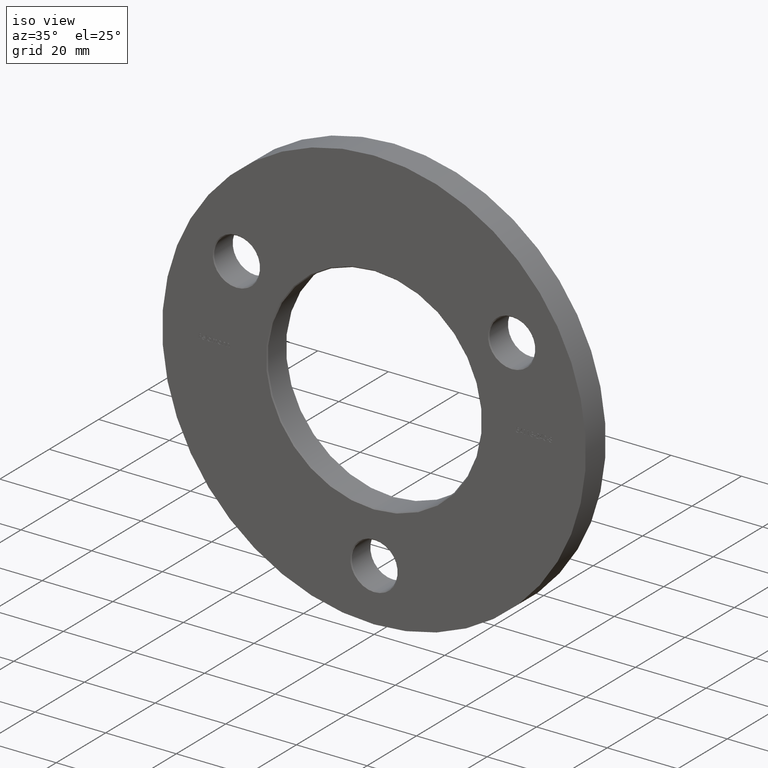
[diagram: clean part render]
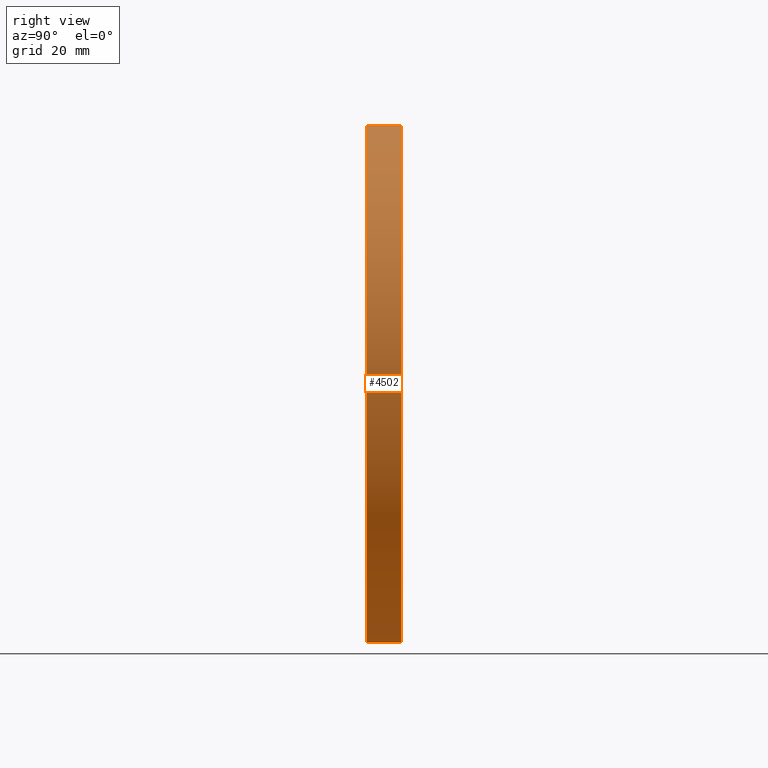
[diagram: tour spotlight — one face highlighted and labeled with its STEP entity id]
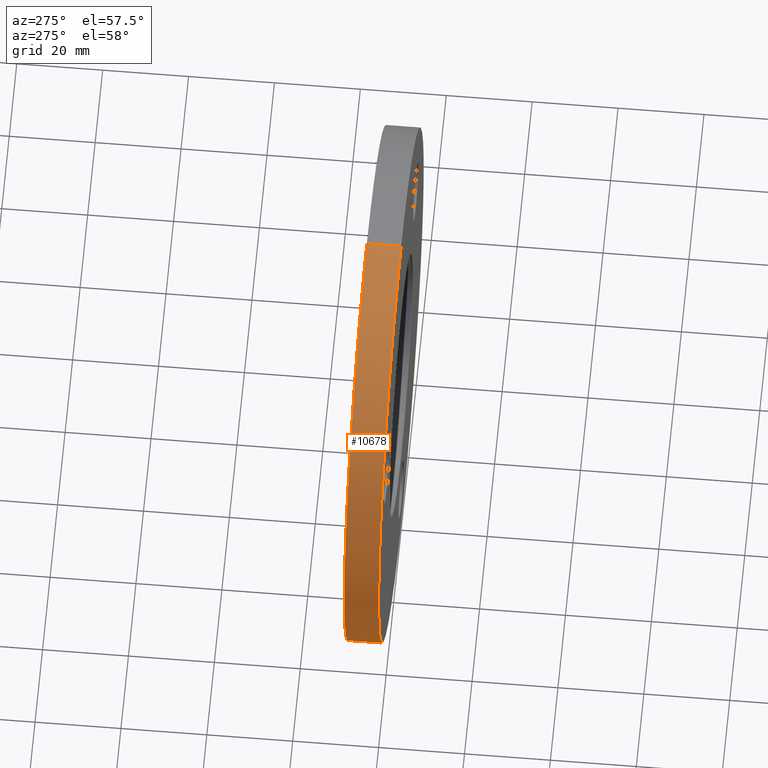
[diagram: tour spotlight — one face highlighted and labeled with its STEP entity id]
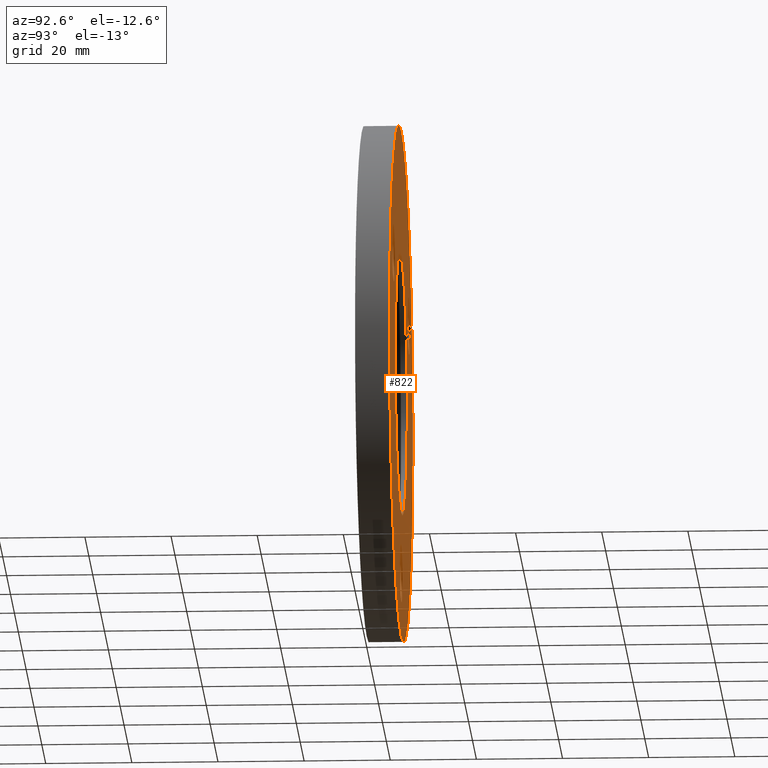
[diagram: tour spotlight — one face highlighted and labeled with its STEP entity id]
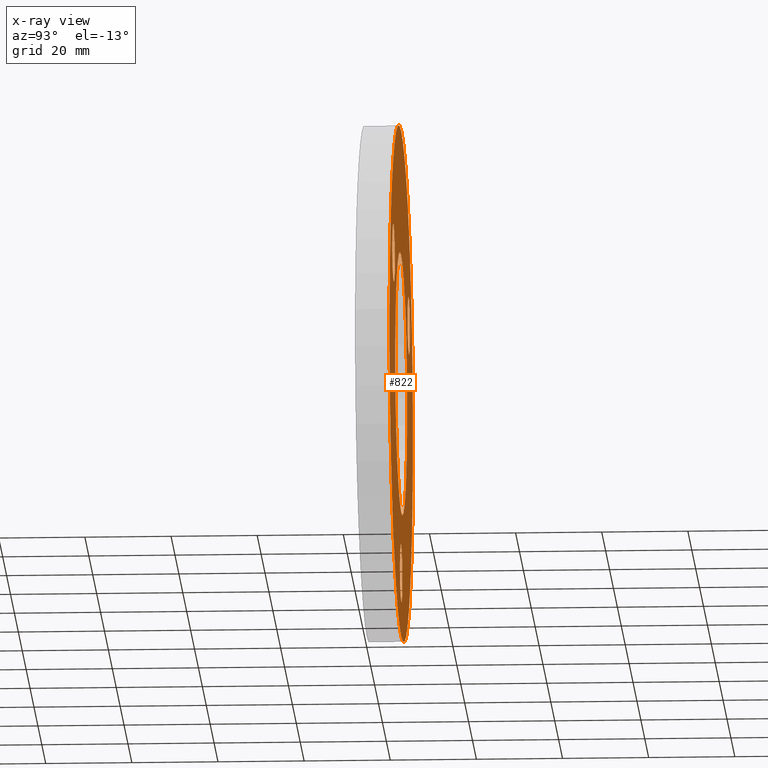
[diagram: x-ray of the same camera — body ghosted, this tour face saturated]
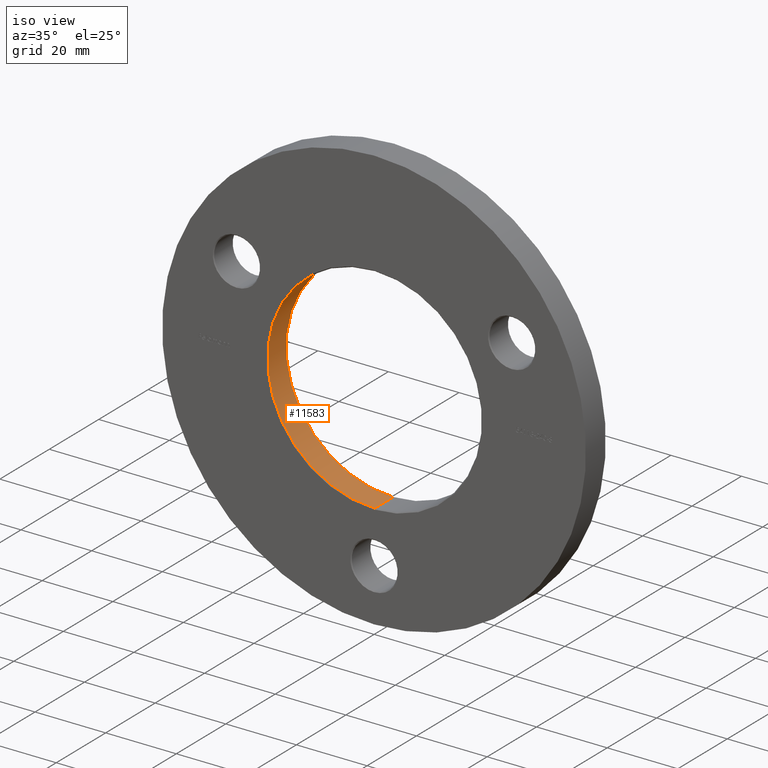
[diagram: tour spotlight — one face highlighted and labeled with its STEP entity id]
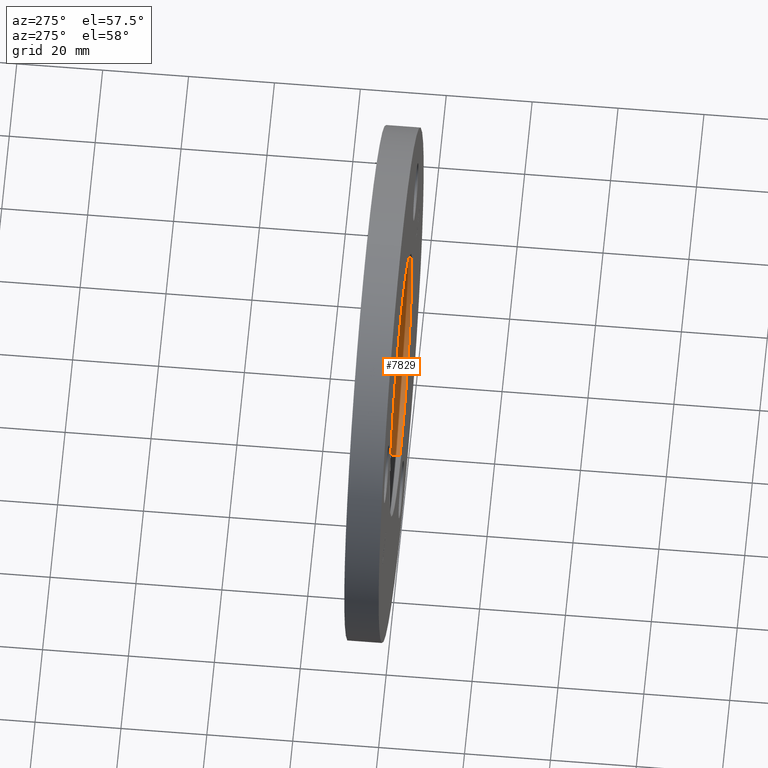
[diagram: tour spotlight — one face highlighted and labeled with its STEP entity id]
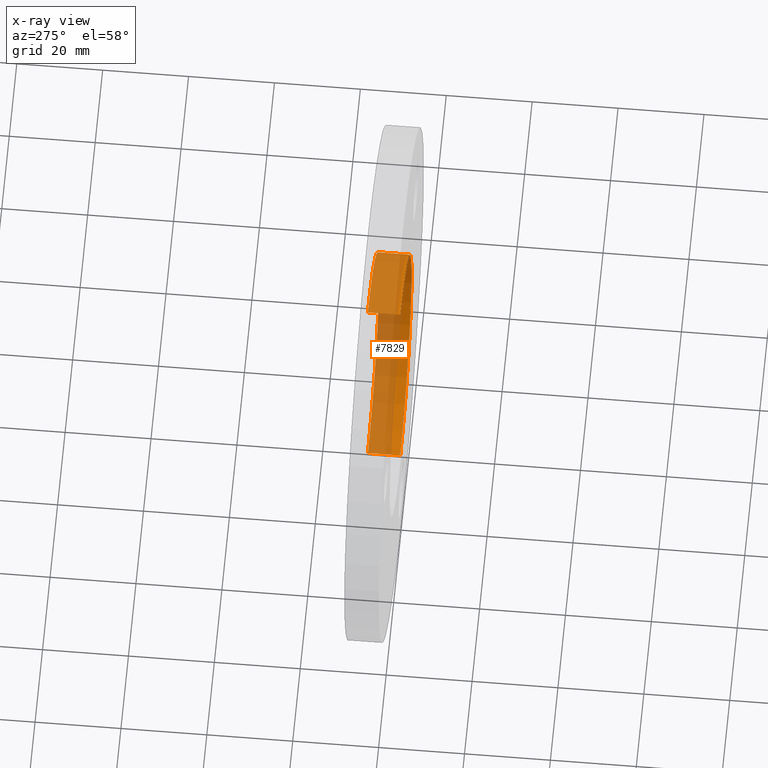
[diagram: x-ray of the same camera — body ghosted, this tour face saturated]
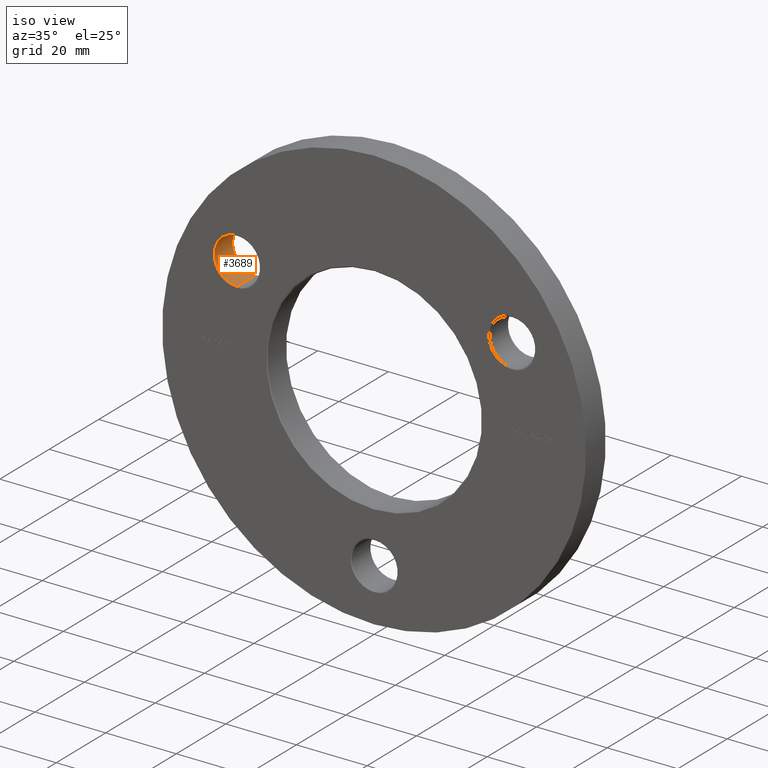
[diagram: tour spotlight — one face highlighted and labeled with its STEP entity id]
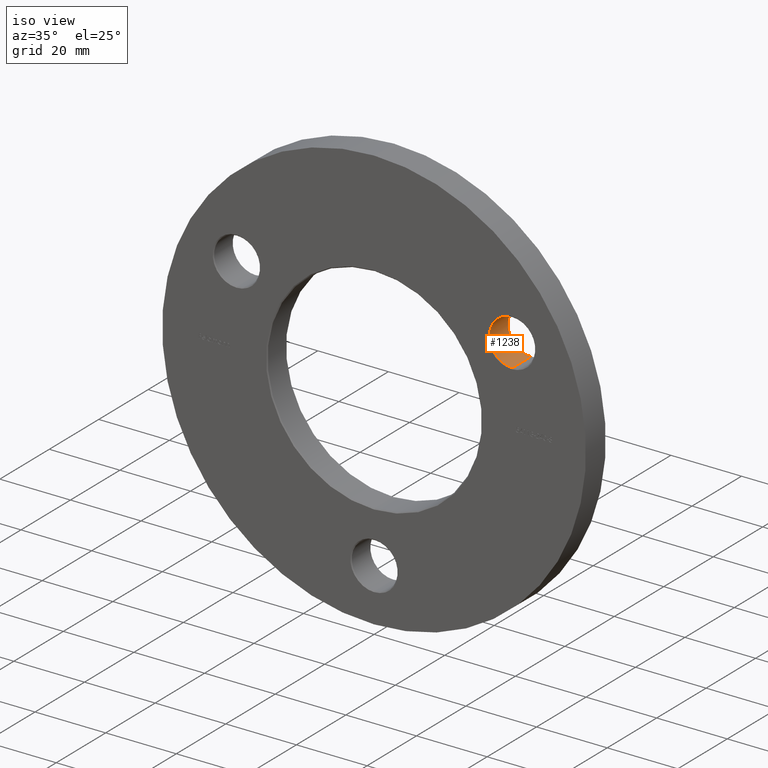
[diagram: tour spotlight — one face highlighted and labeled with its STEP entity id]
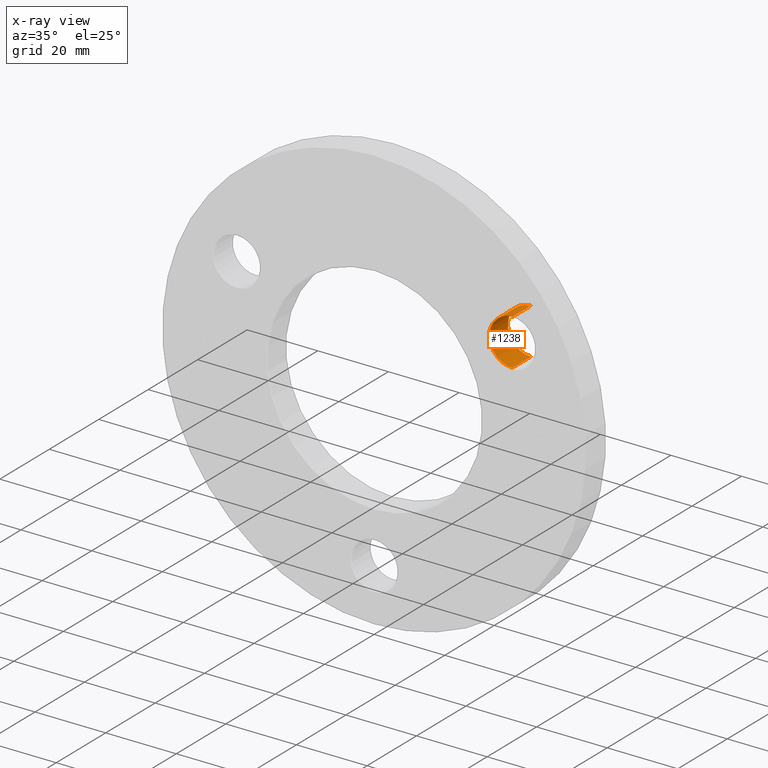
[diagram: x-ray of the same camera — body ghosted, this tour face saturated]
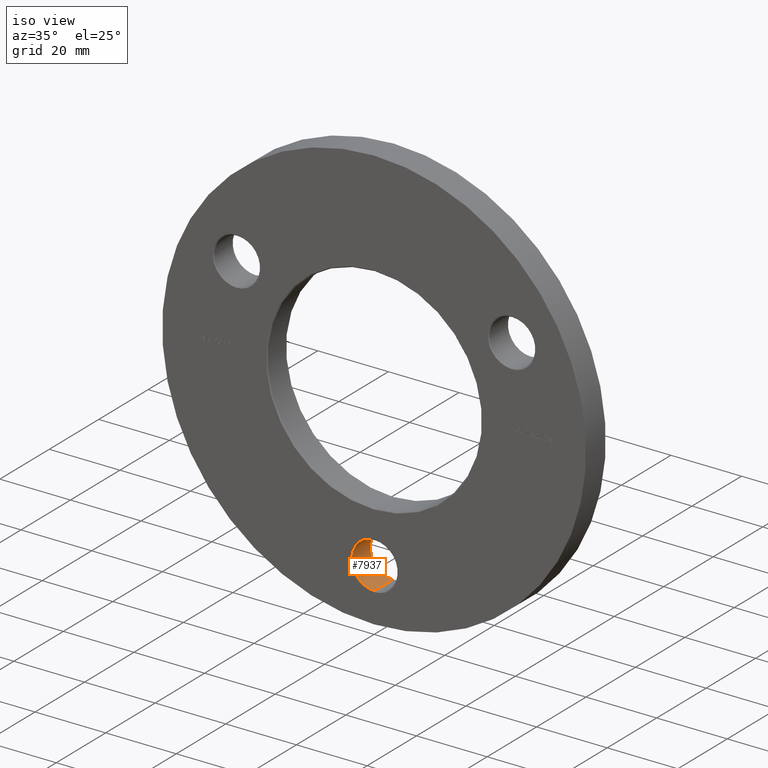
[diagram: tour spotlight — one face highlighted and labeled with its STEP entity id]
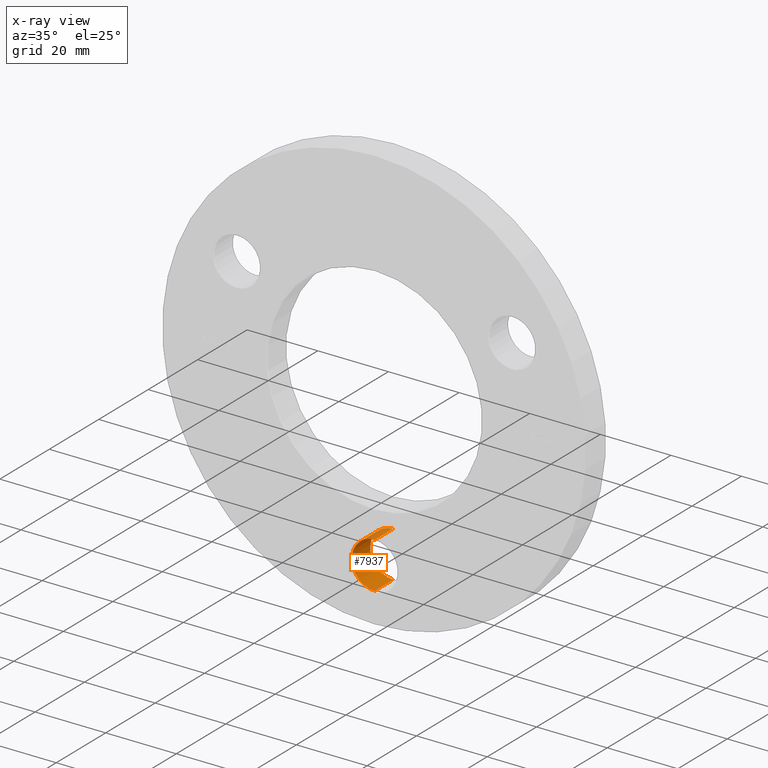
[diagram: x-ray of the same camera — body ghosted, this tour face saturated]
A machine part: a face-by-face anatomy tour. The part has 272 B-rep faces; the first image is the clean iso view, then the 8 largest visible faces are spotlighted one at a time (largest first), each with its STEP entity span.

Face 1 — right view, entity #4502. In plain terms, the highlighted cylindrical surface (partial cylindrical patch) has radius 60 mm, axis along (-0, -1, -0).
Definition (entity closure, byte-faithful):
#568 = DIRECTION ( 'NONE',  ( 0.000000000000000000, 0.000000000000000000, 1.000000000000000000 ) ) ;
#686 = DIRECTION ( 'NONE',  ( 0.000000000000000000, 1.000000000000000000, 0.000000000000000000 ) ) ;
#936 = ORIENTED_EDGE ( 'NONE', *, *, #8297, .T. ) ;
#1449 = CARTESIAN_POINT ( 'NONE',  ( 7.347880794884118356E-15, 8.000000000000000000, 60.00000000000000000 ) ) ;
#2023 = CYLINDRICAL_SURFACE ( 'NONE', #11752, 60.00000000000000000 ) ;
#2128 = CARTESIAN_POINT ( 'NONE',  ( 7.347880794884118356E-15, 8.000000000000000000, 60.00000000000000000 ) ) ;
#2475 = EDGE_LOOP ( 'NONE', ( #13776, #936, #9178, #8138 ) ) ;
#3660 = DIRECTION ( 'NONE',  ( -0.000000000000000000, -1.000000000000000000, -0.000000000000000000 ) ) ;
#4099 = AXIS2_PLACEMENT_3D ( 'NONE', #7072, #686, #8145 ) ;
#4133 = VERTEX_POINT ( 'NONE', #2128 ) ;
#4402 = FACE_OUTER_BOUND ( 'NONE', #2475, .T. ) ;
#4502 = ADVANCED_FACE ( 'NONE', ( #4402 ), #2023, .T. ) ;
#4608 = LINE ( 'NONE', #10141, #10272 ) ;
#4869 = CARTESIAN_POINT ( 'NONE',  ( 0.000000000000000000, 8.000000000000000000, 0.000000000000000000 ) ) ;
#5418 = CARTESIAN_POINT ( 'NONE',  ( 0.000000000000000000, 0.000000000000000000, -60.00000000000000000 ) ) ;
#5657 = EDGE_CURVE ( 'NONE', #9015, #6460, #11389, .T. ) ;
#5826 = DIRECTION ( 'NONE',  ( -0.000000000000000000, -1.000000000000000000, -0.000000000000000000 ) ) ;
#6142 = VECTOR ( 'NONE', #3660, 1000.000000000000000 ) ;
#6460 = VERTEX_POINT ( 'NONE', #5418 ) ;
#7072 = CARTESIAN_POINT ( 'NONE',  ( 0.000000000000000000, 0.000000000000000000, 0.000000000000000000 ) ) ;
#7487 = EDGE_CURVE ( 'NONE', #4133, #8679, #12534, .T. ) ;
#8138 = ORIENTED_EDGE ( 'NONE', *, *, #10668, .F. ) ;
#8145 = DIRECTION ( 'NONE',  ( 0.000000000000000000, 0.000000000000000000, 1.000000000000000000 ) ) ;
#8297 = EDGE_CURVE ( 'NONE', #4133, #9015, #11796, .T. ) ;
#8679 = VERTEX_POINT ( 'NONE', #9862 ) ;
#9015 = VERTEX_POINT ( 'NONE', #10212 ) ;
#9178 = ORIENTED_EDGE ( 'NONE', *, *, #5657, .T. ) ;
#9797 = DIRECTION ( 'NONE',  ( 0.000000000000000000, 0.000000000000000000, -1.000000000000000000 ) ) ;
#9862 = CARTESIAN_POINT ( 'NONE',  ( 0.000000000000000000, 8.000000000000000000, -60.00000000000000000 ) ) ;
#10141 = CARTESIAN_POINT ( 'NONE',  ( 0.000000000000000000, 8.000000000000000000, -60.00000000000000000 ) ) ;
#10212 = CARTESIAN_POINT ( 'NONE',  ( 7.347880794884118356E-15, 0.000000000000000000, 60.00000000000000000 ) ) ;
#10272 = VECTOR ( 'NONE', #5826, 1000.000000000000000 ) ;
#10668 = EDGE_CURVE ( 'NONE', #8679, #6460, #4608, .T. ) ;
#11094 = CARTESIAN_POINT ( 'NONE',  ( 0.000000000000000000, 8.000000000000000000, 0.000000000000000000 ) ) ;
#11389 = CIRCLE ( 'NONE', #4099, 60.00000000000000000 ) ;
#11752 = AXIS2_PLACEMENT_3D ( 'NONE', #11094, #12212, #9797 ) ;
#11796 = LINE ( 'NONE', #1449, #6142 ) ;
#12212 = DIRECTION ( 'NONE',  ( -0.000000000000000000, -1.000000000000000000, -0.000000000000000000 ) ) ;
#12534 = CIRCLE ( 'NONE', #13048, 60.00000000000000000 ) ;
#13048 = AXIS2_PLACEMENT_3D ( 'NONE', #4869, #13509, #568 ) ;
#13509 = DIRECTION ( 'NONE',  ( 0.000000000000000000, 1.000000000000000000, 0.000000000000000000 ) ) ;
#13776 = ORIENTED_EDGE ( 'NONE', *, *, #7487, .F. ) ;

Face 2 — auxiliary view, entity #10678. In plain terms, the highlighted cylindrical surface (partial cylindrical patch) has radius 60 mm, axis along (-0, -1, -0).
Definition (entity closure, byte-faithful):
#1449 = CARTESIAN_POINT ( 'NONE',  ( 7.347880794884118356E-15, 8.000000000000000000, 60.00000000000000000 ) ) ;
#1740 = ORIENTED_EDGE ( 'NONE', *, *, #11382, .F. ) ;
#1756 = CYLINDRICAL_SURFACE ( 'NONE', #4498, 60.00000000000000000 ) ;
#2128 = CARTESIAN_POINT ( 'NONE',  ( 7.347880794884118356E-15, 8.000000000000000000, 60.00000000000000000 ) ) ;
#3660 = DIRECTION ( 'NONE',  ( -0.000000000000000000, -1.000000000000000000, -0.000000000000000000 ) ) ;
#4133 = VERTEX_POINT ( 'NONE', #2128 ) ;
#4498 = AXIS2_PLACEMENT_3D ( 'NONE', #13471, #11121, #5961 ) ;
#4608 = LINE ( 'NONE', #10141, #10272 ) ;
#5344 = EDGE_CURVE ( 'NONE', #6460, #9015, #7194, .T. ) ;
#5418 = CARTESIAN_POINT ( 'NONE',  ( 0.000000000000000000, 0.000000000000000000, -60.00000000000000000 ) ) ;
#5826 = DIRECTION ( 'NONE',  ( -0.000000000000000000, -1.000000000000000000, -0.000000000000000000 ) ) ;
#5961 = DIRECTION ( 'NONE',  ( 0.000000000000000000, 0.000000000000000000, -1.000000000000000000 ) ) ;
#6060 = AXIS2_PLACEMENT_3D ( 'NONE', #11240, #6911, #9043 ) ;
#6142 = VECTOR ( 'NONE', #3660, 1000.000000000000000 ) ;
#6460 = VERTEX_POINT ( 'NONE', #5418 ) ;
#6911 = DIRECTION ( 'NONE',  ( 0.000000000000000000, 1.000000000000000000, 0.000000000000000000 ) ) ;
#7194 = CIRCLE ( 'NONE', #6060, 60.00000000000000000 ) ;
#8076 = ORIENTED_EDGE ( 'NONE', *, *, #10668, .T. ) ;
#8122 = EDGE_LOOP ( 'NONE', ( #9790, #1740, #8076, #8867 ) ) ;
#8297 = EDGE_CURVE ( 'NONE', #4133, #9015, #11796, .T. ) ;
#8679 = VERTEX_POINT ( 'NONE', #9862 ) ;
#8867 = ORIENTED_EDGE ( 'NONE', *, *, #5344, .T. ) ;
#9015 = VERTEX_POINT ( 'NONE', #10212 ) ;
#9043 = DIRECTION ( 'NONE',  ( 0.000000000000000000, 0.000000000000000000, 1.000000000000000000 ) ) ;
#9257 = CARTESIAN_POINT ( 'NONE',  ( 0.000000000000000000, 8.000000000000000000, 0.000000000000000000 ) ) ;
#9517 = CIRCLE ( 'NONE', #13605, 60.00000000000000000 ) ;
#9790 = ORIENTED_EDGE ( 'NONE', *, *, #8297, .F. ) ;
#9862 = CARTESIAN_POINT ( 'NONE',  ( 0.000000000000000000, 8.000000000000000000, -60.00000000000000000 ) ) ;
#10141 = CARTESIAN_POINT ( 'NONE',  ( 0.000000000000000000, 8.000000000000000000, -60.00000000000000000 ) ) ;
#10212 = CARTESIAN_POINT ( 'NONE',  ( 7.347880794884118356E-15, 0.000000000000000000, 60.00000000000000000 ) ) ;
#10272 = VECTOR ( 'NONE', #5826, 1000.000000000000000 ) ;
#10522 = DIRECTION ( 'NONE',  ( 0.000000000000000000, 0.000000000000000000, 1.000000000000000000 ) ) ;
#10668 = EDGE_CURVE ( 'NONE', #8679, #6460, #4608, .T. ) ;
#10678 = ADVANCED_FACE ( 'NONE', ( #13456 ), #1756, .T. ) ;
#11121 = DIRECTION ( 'NONE',  ( -0.000000000000000000, -1.000000000000000000, -0.000000000000000000 ) ) ;
#11240 = CARTESIAN_POINT ( 'NONE',  ( 0.000000000000000000, 0.000000000000000000, 0.000000000000000000 ) ) ;
#11382 = EDGE_CURVE ( 'NONE', #8679, #4133, #9517, .T. ) ;
#11796 = LINE ( 'NONE', #1449, #6142 ) ;
#12532 = DIRECTION ( 'NONE',  ( 0.000000000000000000, 1.000000000000000000, 0.000000000000000000 ) ) ;
#13456 = FACE_OUTER_BOUND ( 'NONE', #8122, .T. ) ;
#13471 = CARTESIAN_POINT ( 'NONE',  ( 0.000000000000000000, 8.000000000000000000, 0.000000000000000000 ) ) ;
#13605 = AXIS2_PLACEMENT_3D ( 'NONE', #9257, #12532, #10522 ) ;

Face 3 — auxiliary view, entity #822. An x-ray twin of the same camera follows (body ghosted, this face saturated) — the face is partly hidden behind the body. In plain terms, the highlighted planar face has unit normal (0, 1, 0).
Definition (entity closure, byte-faithful):
#189 = AXIS2_PLACEMENT_3D ( 'NONE', #6184, #11402, #10427 ) ;
#366 = EDGE_CURVE ( 'NONE', #11688, #7033, #4965, .T. ) ;
#436 = VERTEX_POINT ( 'NONE', #10826 ) ;
#568 = DIRECTION ( 'NONE',  ( 0.000000000000000000, 0.000000000000000000, 1.000000000000000000 ) ) ;
#705 = CARTESIAN_POINT ( 'NONE',  ( -38.97114317029972597, 8.000000000000000000, 29.25000000000005329 ) ) ;
#822 = ADVANCED_FACE ( 'NONE', ( #9260, #9597, #6421, #3603, #7250 ), #12729, .T. ) ;
#1030 = DIRECTION ( 'NONE',  ( -0.000000000000000000, -1.000000000000000000, -0.000000000000000000 ) ) ;
#1104 = DIRECTION ( 'NONE',  ( 0.000000000000000000, -0.000000000000000000, 1.000000000000000000 ) ) ;
#1486 = AXIS2_PLACEMENT_3D ( 'NONE', #5090, #7074, #4013 ) ;
#1508 = VERTEX_POINT ( 'NONE', #2537 ) ;
#1797 = CARTESIAN_POINT ( 'NONE',  ( 0.000000000000000000, 8.000000000000000000, 0.000000000000000000 ) ) ;
#1843 = DIRECTION ( 'NONE',  ( -0.000000000000000000, -1.000000000000000000, -0.000000000000000000 ) ) ;
#2000 = DIRECTION ( 'NONE',  ( 0.000000000000000000, 0.000000000000000000, 1.000000000000000000 ) ) ;
#2128 = CARTESIAN_POINT ( 'NONE',  ( 7.347880794884118356E-15, 8.000000000000000000, 60.00000000000000000 ) ) ;
#2537 = CARTESIAN_POINT ( 'NONE',  ( 0.000000000000000000, 8.000000000000000000, -38.24999999999996447 ) ) ;
#2740 = EDGE_LOOP ( 'NONE', ( #10218, #13555 ) ) ;
#2808 = EDGE_CURVE ( 'NONE', #7896, #1508, #6083, .T. ) ;
#2988 = ORIENTED_EDGE ( 'NONE', *, *, #10772, .T. ) ;
#2992 = ORIENTED_EDGE ( 'NONE', *, *, #366, .T. ) ;
#3137 = CARTESIAN_POINT ( 'NONE',  ( 38.97114317029974728, 8.000000000000000000, 22.49999999999999289 ) ) ;
#3267 = CIRCLE ( 'NONE', #189, 6.750000000000033751 ) ;
#3412 = DIRECTION ( 'NONE',  ( -0.000000000000000000, -1.000000000000000000, -0.000000000000000000 ) ) ;
#3603 = FACE_BOUND ( 'NONE', #7544, .T. ) ;
#3899 = AXIS2_PLACEMENT_3D ( 'NONE', #8605, #10762, #1104 ) ;
#4013 = DIRECTION ( 'NONE',  ( 0.000000000000000000, 0.000000000000000000, 1.000000000000000000 ) ) ;
#4125 = EDGE_CURVE ( 'NONE', #6318, #436, #11388, .T. ) ;
#4133 = VERTEX_POINT ( 'NONE', #2128 ) ;
#4138 = CARTESIAN_POINT ( 'NONE',  ( 8.266365894244675749E-16, 8.000000000000000000, -51.75000000000003553 ) ) ;
#4392 = CARTESIAN_POINT ( 'NONE',  ( 0.000000000000000000, 8.000000000000000000, -45.00000000000000000 ) ) ;
#4426 = DIRECTION ( 'NONE',  ( -0.000000000000000000, -1.000000000000000000, -0.000000000000000000 ) ) ;
#4714 = ORIENTED_EDGE ( 'NONE', *, *, #2808, .T. ) ;
#4869 = CARTESIAN_POINT ( 'NONE',  ( 0.000000000000000000, 8.000000000000000000, 0.000000000000000000 ) ) ;
#4965 = CIRCLE ( 'NONE', #13646, 6.750000000000033751 ) ;
#5090 = CARTESIAN_POINT ( 'NONE',  ( -38.97114317029972597, 8.000000000000000000, 22.50000000000002132 ) ) ;
#5101 = EDGE_LOOP ( 'NONE', ( #11729, #11075 ) ) ;
#5244 = DIRECTION ( 'NONE',  ( 0.000000000000000000, 0.000000000000000000, 1.000000000000000000 ) ) ;
#5403 = CARTESIAN_POINT ( 'NONE',  ( 0.000000000000000000, 8.000000000000000000, 0.000000000000000000 ) ) ;
#6083 = CIRCLE ( 'NONE', #8535, 6.750000000000033751 ) ;
#6105 = AXIS2_PLACEMENT_3D ( 'NONE', #5403, #4426, #11865 ) ;
#6184 = CARTESIAN_POINT ( 'NONE',  ( 0.000000000000000000, 8.000000000000000000, -45.00000000000000000 ) ) ;
#6259 = CARTESIAN_POINT ( 'NONE',  ( 38.97114317029974728, 8.000000000000000000, 22.49999999999999289 ) ) ;
#6318 = VERTEX_POINT ( 'NONE', #705 ) ;
#6421 = FACE_BOUND ( 'NONE', #2740, .T. ) ;
#6483 = ORIENTED_EDGE ( 'NONE', *, *, #7615, .T. ) ;
#6729 = EDGE_CURVE ( 'NONE', #436, #6318, #8360, .T. ) ;
#6888 = CARTESIAN_POINT ( 'NONE',  ( 0.000000000000000000, 8.000000000000000000, 30.59999999999998721 ) ) ;
#7033 = VERTEX_POINT ( 'NONE', #13430 ) ;
#7074 = DIRECTION ( 'NONE',  ( -0.000000000000000000, -1.000000000000000000, -0.000000000000000000 ) ) ;
#7147 = CIRCLE ( 'NONE', #6105, 30.59999999999998721 ) ;
#7250 = FACE_OUTER_BOUND ( 'NONE', #13592, .T. ) ;
#7284 = AXIS2_PLACEMENT_3D ( 'NONE', #9468, #11778, #9697 ) ;
#7378 = CARTESIAN_POINT ( 'NONE',  ( 38.97114317029974728, 8.000000000000000000, 29.25000000000002487 ) ) ;
#7487 = EDGE_CURVE ( 'NONE', #4133, #8679, #12534, .T. ) ;
#7544 = EDGE_LOOP ( 'NONE', ( #2988, #4714 ) ) ;
#7615 = EDGE_CURVE ( 'NONE', #7033, #11688, #8518, .T. ) ;
#7896 = VERTEX_POINT ( 'NONE', #4138 ) ;
#8324 = DIRECTION ( 'NONE',  ( 0.000000000000000000, 0.000000000000000000, 1.000000000000000000 ) ) ;
#8360 = CIRCLE ( 'NONE', #1486, 6.750000000000033751 ) ;
#8518 = CIRCLE ( 'NONE', #9651, 6.750000000000033751 ) ;
#8535 = AXIS2_PLACEMENT_3D ( 'NONE', #4392, #3412, #10858 ) ;
#8605 = CARTESIAN_POINT ( 'NONE',  ( 0.000000000000000000, 8.000000000000000000, 0.000000000000000000 ) ) ;
#8679 = VERTEX_POINT ( 'NONE', #9862 ) ;
#8813 = VERTEX_POINT ( 'NONE', #8907 ) ;
#8907 = CARTESIAN_POINT ( 'NONE',  ( 3.747419205390899320E-15, 8.000000000000000000, -30.59999999999998721 ) ) ;
#9051 = ORIENTED_EDGE ( 'NONE', *, *, #11382, .T. ) ;
#9257 = CARTESIAN_POINT ( 'NONE',  ( 0.000000000000000000, 8.000000000000000000, 0.000000000000000000 ) ) ;
#9260 = FACE_BOUND ( 'NONE', #5101, .T. ) ;
#9468 = CARTESIAN_POINT ( 'NONE',  ( -38.97114317029972597, 8.000000000000000000, 22.50000000000002132 ) ) ;
#9517 = CIRCLE ( 'NONE', #13605, 60.00000000000000000 ) ;
#9597 = FACE_BOUND ( 'NONE', #9896, .T. ) ;
#9651 = AXIS2_PLACEMENT_3D ( 'NONE', #6259, #13738, #2000 ) ;
#9697 = DIRECTION ( 'NONE',  ( 0.000000000000000000, 0.000000000000000000, 1.000000000000000000 ) ) ;
#9862 = CARTESIAN_POINT ( 'NONE',  ( 0.000000000000000000, 8.000000000000000000, -60.00000000000000000 ) ) ;
#9896 = EDGE_LOOP ( 'NONE', ( #2992, #6483 ) ) ;
#10218 = ORIENTED_EDGE ( 'NONE', *, *, #4125, .T. ) ;
#10427 = DIRECTION ( 'NONE',  ( 0.000000000000000000, 0.000000000000000000, 1.000000000000000000 ) ) ;
#10522 = DIRECTION ( 'NONE',  ( 0.000000000000000000, 0.000000000000000000, 1.000000000000000000 ) ) ;
#10762 = DIRECTION ( 'NONE',  ( 0.000000000000000000, 1.000000000000000000, 0.000000000000000000 ) ) ;
#10772 = EDGE_CURVE ( 'NONE', #1508, #7896, #3267, .T. ) ;
#10826 = CARTESIAN_POINT ( 'NONE',  ( -38.97114317029972597, 8.000000000000000000, 15.74999999999998579 ) ) ;
#10858 = DIRECTION ( 'NONE',  ( 0.000000000000000000, 0.000000000000000000, 1.000000000000000000 ) ) ;
#11075 = ORIENTED_EDGE ( 'NONE', *, *, #11386, .T. ) ;
#11308 = VERTEX_POINT ( 'NONE', #6888 ) ;
#11382 = EDGE_CURVE ( 'NONE', #8679, #4133, #9517, .T. ) ;
#11386 = EDGE_CURVE ( 'NONE', #8813, #11308, #13033, .T. ) ;
#11388 = CIRCLE ( 'NONE', #7284, 6.750000000000033751 ) ;
#11402 = DIRECTION ( 'NONE',  ( -0.000000000000000000, -1.000000000000000000, -0.000000000000000000 ) ) ;
#11688 = VERTEX_POINT ( 'NONE', #7378 ) ;
#11729 = ORIENTED_EDGE ( 'NONE', *, *, #13279, .T. ) ;
#11778 = DIRECTION ( 'NONE',  ( -0.000000000000000000, -1.000000000000000000, -0.000000000000000000 ) ) ;
#11865 = DIRECTION ( 'NONE',  ( 0.000000000000000000, 0.000000000000000000, 1.000000000000000000 ) ) ;
#11891 = AXIS2_PLACEMENT_3D ( 'NONE', #1797, #1843, #8324 ) ;
#12388 = ORIENTED_EDGE ( 'NONE', *, *, #7487, .T. ) ;
#12532 = DIRECTION ( 'NONE',  ( 0.000000000000000000, 1.000000000000000000, 0.000000000000000000 ) ) ;
#12534 = CIRCLE ( 'NONE', #13048, 60.00000000000000000 ) ;
#12729 = PLANE ( 'NONE',  #3899 ) ;
#13033 = CIRCLE ( 'NONE', #11891, 30.59999999999998721 ) ;
#13048 = AXIS2_PLACEMENT_3D ( 'NONE', #4869, #13509, #568 ) ;
#13279 = EDGE_CURVE ( 'NONE', #11308, #8813, #7147, .T. ) ;
#13430 = CARTESIAN_POINT ( 'NONE',  ( 38.97114317029974728, 8.000000000000000000, 15.74999999999995914 ) ) ;
#13509 = DIRECTION ( 'NONE',  ( 0.000000000000000000, 1.000000000000000000, 0.000000000000000000 ) ) ;
#13555 = ORIENTED_EDGE ( 'NONE', *, *, #6729, .T. ) ;
#13592 = EDGE_LOOP ( 'NONE', ( #9051, #12388 ) ) ;
#13605 = AXIS2_PLACEMENT_3D ( 'NONE', #9257, #12532, #10522 ) ;
#13646 = AXIS2_PLACEMENT_3D ( 'NONE', #3137, #1030, #5244 ) ;
#13738 = DIRECTION ( 'NONE',  ( -0.000000000000000000, -1.000000000000000000, -0.000000000000000000 ) ) ;

Face 4 — iso view, entity #11583. In plain terms, the highlighted cylindrical surface (partial cylindrical patch) has radius 30.35 mm, axis along (-0, 1, -0).
Definition (entity closure, byte-faithful):
#23 = ORIENTED_EDGE ( 'NONE', *, *, #10952, .T. ) ;
#911 = DIRECTION ( 'NONE',  ( 0.000000000000000000, 0.000000000000000000, 1.000000000000000000 ) ) ;
#1438 = CARTESIAN_POINT ( 'NONE',  ( 0.000000000000000000, 0.2500000000000210387, 0.000000000000000000 ) ) ;
#1586 = EDGE_LOOP ( 'NONE', ( #23, #13479, #6713, #13041 ) ) ;
#2006 = CARTESIAN_POINT ( 'NONE',  ( 0.000000000000000000, 0.2500000000000210387, 30.35000000000000142 ) ) ;
#2356 = DIRECTION ( 'NONE',  ( 0.000000000000000000, 1.000000000000000000, 0.000000000000000000 ) ) ;
#2970 = EDGE_CURVE ( 'NONE', #3597, #7656, #8898, .T. ) ;
#3020 = FACE_OUTER_BOUND ( 'NONE', #1586, .T. ) ;
#3041 = CARTESIAN_POINT ( 'NONE',  ( 3.716803035412217111E-15, 0.000000000000000000, -30.35000000000000142 ) ) ;
#3172 = CIRCLE ( 'NONE', #6814, 30.35000000000000142 ) ;
#3205 = LINE ( 'NONE', #3041, #6381 ) ;
#3597 = VERTEX_POINT ( 'NONE', #2006 ) ;
#3918 = VECTOR ( 'NONE', #6800, 1000.000000000000000 ) ;
#4331 = CARTESIAN_POINT ( 'NONE',  ( 0.000000000000000000, 7.750000000000003553, 0.000000000000000000 ) ) ;
#4403 = CARTESIAN_POINT ( 'NONE',  ( 0.000000000000000000, 7.750000000000003553, 30.35000000000000142 ) ) ;
#4628 = VERTEX_POINT ( 'NONE', #9545 ) ;
#5450 = EDGE_CURVE ( 'NONE', #7665, #4628, #3205, .T. ) ;
#6381 = VECTOR ( 'NONE', #10501, 1000.000000000000000 ) ;
#6599 = DIRECTION ( 'NONE',  ( 0.000000000000000000, 0.000000000000000000, 1.000000000000000000 ) ) ;
#6630 = AXIS2_PLACEMENT_3D ( 'NONE', #13664, #7294, #911 ) ;
#6713 = ORIENTED_EDGE ( 'NONE', *, *, #12259, .T. ) ;
#6800 = DIRECTION ( 'NONE',  ( -0.000000000000000000, 1.000000000000000000, -0.000000000000000000 ) ) ;
#6814 = AXIS2_PLACEMENT_3D ( 'NONE', #4331, #2356, #6599 ) ;
#7294 = DIRECTION ( 'NONE',  ( -0.000000000000000000, 1.000000000000000000, -0.000000000000000000 ) ) ;
#7656 = VERTEX_POINT ( 'NONE', #4403 ) ;
#7665 = VERTEX_POINT ( 'NONE', #11836 ) ;
#8898 = LINE ( 'NONE', #12248, #3918 ) ;
#9427 = CIRCLE ( 'NONE', #13346, 30.35000000000000142 ) ;
#9545 = CARTESIAN_POINT ( 'NONE',  ( 3.716803035412217111E-15, 7.750000000000003553, -30.35000000000000142 ) ) ;
#10355 = CYLINDRICAL_SURFACE ( 'NONE', #6630, 30.35000000000000142 ) ;
#10501 = DIRECTION ( 'NONE',  ( -0.000000000000000000, 1.000000000000000000, -0.000000000000000000 ) ) ;
#10952 = EDGE_CURVE ( 'NONE', #3597, #7665, #9427, .T. ) ;
#11001 = DIRECTION ( 'NONE',  ( 0.000000000000000000, 0.000000000000000000, 1.000000000000000000 ) ) ;
#11583 = ADVANCED_FACE ( 'NONE', ( #3020 ), #10355, .F. ) ;
#11836 = CARTESIAN_POINT ( 'NONE',  ( 3.716803035412217111E-15, 0.2500000000000210387, -30.35000000000000142 ) ) ;
#12248 = CARTESIAN_POINT ( 'NONE',  ( 0.000000000000000000, 0.000000000000000000, 30.35000000000000142 ) ) ;
#12259 = EDGE_CURVE ( 'NONE', #4628, #7656, #3172, .T. ) ;
#13041 = ORIENTED_EDGE ( 'NONE', *, *, #2970, .F. ) ;
#13067 = DIRECTION ( 'NONE',  ( -0.000000000000000000, -1.000000000000000000, -0.000000000000000000 ) ) ;
#13346 = AXIS2_PLACEMENT_3D ( 'NONE', #1438, #13067, #11001 ) ;
#13479 = ORIENTED_EDGE ( 'NONE', *, *, #5450, .T. ) ;
#13664 = CARTESIAN_POINT ( 'NONE',  ( 0.000000000000000000, 0.000000000000000000, 0.000000000000000000 ) ) ;

Face 5 — auxiliary view, entity #7829. An x-ray twin of the same camera follows (body ghosted, this face saturated) — the face is partly hidden behind the body. In plain terms, the highlighted cylindrical surface (partial cylindrical patch) has radius 30.35 mm, axis along (-0, 1, -0).
Definition (entity closure, byte-faithful):
#47 = CARTESIAN_POINT ( 'NONE',  ( 0.000000000000000000, 0.2500000000000210387, 0.000000000000000000 ) ) ;
#94 = DIRECTION ( 'NONE',  ( 0.000000000000000000, 0.000000000000000000, 1.000000000000000000 ) ) ;
#387 = ORIENTED_EDGE ( 'NONE', *, *, #5450, .F. ) ;
#2006 = CARTESIAN_POINT ( 'NONE',  ( 0.000000000000000000, 0.2500000000000210387, 30.35000000000000142 ) ) ;
#2025 = CIRCLE ( 'NONE', #11667, 30.35000000000000142 ) ;
#2520 = EDGE_CURVE ( 'NONE', #7656, #4628, #5764, .T. ) ;
#2784 = DIRECTION ( 'NONE',  ( 0.000000000000000000, 0.000000000000000000, 1.000000000000000000 ) ) ;
#2970 = EDGE_CURVE ( 'NONE', #3597, #7656, #8898, .T. ) ;
#3041 = CARTESIAN_POINT ( 'NONE',  ( 3.716803035412217111E-15, 0.000000000000000000, -30.35000000000000142 ) ) ;
#3205 = LINE ( 'NONE', #3041, #6381 ) ;
#3351 = CARTESIAN_POINT ( 'NONE',  ( 0.000000000000000000, 7.750000000000003553, 0.000000000000000000 ) ) ;
#3597 = VERTEX_POINT ( 'NONE', #2006 ) ;
#3905 = CYLINDRICAL_SURFACE ( 'NONE', #9102, 30.35000000000000142 ) ;
#3918 = VECTOR ( 'NONE', #6800, 1000.000000000000000 ) ;
#4403 = CARTESIAN_POINT ( 'NONE',  ( 0.000000000000000000, 7.750000000000003553, 30.35000000000000142 ) ) ;
#4469 = DIRECTION ( 'NONE',  ( 0.000000000000000000, 0.000000000000000000, 1.000000000000000000 ) ) ;
#4628 = VERTEX_POINT ( 'NONE', #9545 ) ;
#5420 = EDGE_LOOP ( 'NONE', ( #387, #8438, #8632, #7636 ) ) ;
#5450 = EDGE_CURVE ( 'NONE', #7665, #4628, #3205, .T. ) ;
#5764 = CIRCLE ( 'NONE', #7816, 30.35000000000000142 ) ;
#6381 = VECTOR ( 'NONE', #10501, 1000.000000000000000 ) ;
#6495 = EDGE_CURVE ( 'NONE', #7665, #3597, #2025, .T. ) ;
#6800 = DIRECTION ( 'NONE',  ( -0.000000000000000000, 1.000000000000000000, -0.000000000000000000 ) ) ;
#7636 = ORIENTED_EDGE ( 'NONE', *, *, #2520, .T. ) ;
#7656 = VERTEX_POINT ( 'NONE', #4403 ) ;
#7665 = VERTEX_POINT ( 'NONE', #11836 ) ;
#7816 = AXIS2_PLACEMENT_3D ( 'NONE', #3351, #12953, #4469 ) ;
#7829 = ADVANCED_FACE ( 'NONE', ( #12607 ), #3905, .F. ) ;
#8438 = ORIENTED_EDGE ( 'NONE', *, *, #6495, .T. ) ;
#8632 = ORIENTED_EDGE ( 'NONE', *, *, #2970, .T. ) ;
#8898 = LINE ( 'NONE', #12248, #3918 ) ;
#9062 = DIRECTION ( 'NONE',  ( -0.000000000000000000, 1.000000000000000000, -0.000000000000000000 ) ) ;
#9102 = AXIS2_PLACEMENT_3D ( 'NONE', #13474, #9062, #2784 ) ;
#9545 = CARTESIAN_POINT ( 'NONE',  ( 3.716803035412217111E-15, 7.750000000000003553, -30.35000000000000142 ) ) ;
#10501 = DIRECTION ( 'NONE',  ( -0.000000000000000000, 1.000000000000000000, -0.000000000000000000 ) ) ;
#11667 = AXIS2_PLACEMENT_3D ( 'NONE', #47, #12875, #94 ) ;
#11836 = CARTESIAN_POINT ( 'NONE',  ( 3.716803035412217111E-15, 0.2500000000000210387, -30.35000000000000142 ) ) ;
#12248 = CARTESIAN_POINT ( 'NONE',  ( 0.000000000000000000, 0.000000000000000000, 30.35000000000000142 ) ) ;
#12607 = FACE_OUTER_BOUND ( 'NONE', #5420, .T. ) ;
#12875 = DIRECTION ( 'NONE',  ( -0.000000000000000000, -1.000000000000000000, -0.000000000000000000 ) ) ;
#12953 = DIRECTION ( 'NONE',  ( 0.000000000000000000, 1.000000000000000000, 0.000000000000000000 ) ) ;
#13474 = CARTESIAN_POINT ( 'NONE',  ( 0.000000000000000000, 0.000000000000000000, 0.000000000000000000 ) ) ;

Face 6 — iso view, entity #3689. In plain terms, the highlighted cylindrical surface (edge-blend (fillet) strip) has radius 6.5 mm, axis along (-0, -1, -0).
Definition (entity closure, byte-faithful):
#146 = AXIS2_PLACEMENT_3D ( 'NONE', #4310, #3331, #10873 ) ;
#288 = EDGE_CURVE ( 'NONE', #5004, #12069, #13814, .T. ) ;
#741 = EDGE_CURVE ( 'NONE', #3861, #5004, #2712, .T. ) ;
#1335 = AXIS2_PLACEMENT_3D ( 'NONE', #11065, #1453, #3573 ) ;
#1387 = FACE_OUTER_BOUND ( 'NONE', #11214, .T. ) ;
#1453 = DIRECTION ( 'NONE',  ( -0.000000000000000000, -1.000000000000000000, -0.000000000000000000 ) ) ;
#1701 = CARTESIAN_POINT ( 'NONE',  ( -38.97114317029972597, 8.000000000000000000, 29.00000000000002842 ) ) ;
#1854 = DIRECTION ( 'NONE',  ( 0.000000000000000000, 0.000000000000000000, 1.000000000000000000 ) ) ;
#2712 = CIRCLE ( 'NONE', #13461, 6.500000000000008882 ) ;
#3028 = DIRECTION ( 'NONE',  ( 0.000000000000000000, 1.000000000000000000, 0.000000000000000000 ) ) ;
#3058 = CARTESIAN_POINT ( 'NONE',  ( -38.97114317029972597, 7.749999999999963585, 29.00000000000002842 ) ) ;
#3191 = CIRCLE ( 'NONE', #1335, 6.500000000000008882 ) ;
#3331 = DIRECTION ( 'NONE',  ( -0.000000000000000000, -1.000000000000000000, -0.000000000000000000 ) ) ;
#3573 = DIRECTION ( 'NONE',  ( 0.000000000000000000, 0.000000000000000000, 1.000000000000000000 ) ) ;
#3689 = ADVANCED_FACE ( 'NONE', ( #1387 ), #12905, .F. ) ;
#3861 = VERTEX_POINT ( 'NONE', #9853 ) ;
#4310 = CARTESIAN_POINT ( 'NONE',  ( -38.97114317029972597, 8.000000000000000000, 22.50000000000002132 ) ) ;
#4725 = LINE ( 'NONE', #6819, #9035 ) ;
#4956 = VERTEX_POINT ( 'NONE', #8271 ) ;
#5004 = VERTEX_POINT ( 'NONE', #3058 ) ;
#5139 = CARTESIAN_POINT ( 'NONE',  ( -38.97114317029972597, 7.749999999999963585, 22.50000000000002132 ) ) ;
#5571 = ORIENTED_EDGE ( 'NONE', *, *, #288, .T. ) ;
#6004 = EDGE_CURVE ( 'NONE', #3861, #4956, #4725, .T. ) ;
#6295 = VECTOR ( 'NONE', #7022, 1000.000000000000000 ) ;
#6819 = CARTESIAN_POINT ( 'NONE',  ( -38.97114317029972597, 8.000000000000000000, 16.00000000000001066 ) ) ;
#7022 = DIRECTION ( 'NONE',  ( -0.000000000000000000, -1.000000000000000000, -0.000000000000000000 ) ) ;
#7221 = CARTESIAN_POINT ( 'NONE',  ( -38.97114317029972597, 0.2499999999999924227, 29.00000000000002842 ) ) ;
#7426 = EDGE_CURVE ( 'NONE', #12069, #4956, #3191, .T. ) ;
#8271 = CARTESIAN_POINT ( 'NONE',  ( -38.97114317029972597, 0.2499999999999924227, 16.00000000000001066 ) ) ;
#9035 = VECTOR ( 'NONE', #13316, 1000.000000000000000 ) ;
#9500 = ORIENTED_EDGE ( 'NONE', *, *, #7426, .T. ) ;
#9544 = ORIENTED_EDGE ( 'NONE', *, *, #6004, .F. ) ;
#9853 = CARTESIAN_POINT ( 'NONE',  ( -38.97114317029972597, 7.749999999999963585, 16.00000000000001066 ) ) ;
#10873 = DIRECTION ( 'NONE',  ( 0.000000000000000000, 0.000000000000000000, -1.000000000000000000 ) ) ;
#11065 = CARTESIAN_POINT ( 'NONE',  ( -38.97114317029972597, 0.2499999999999924227, 22.50000000000002132 ) ) ;
#11214 = EDGE_LOOP ( 'NONE', ( #12168, #5571, #9500, #9544 ) ) ;
#12069 = VERTEX_POINT ( 'NONE', #7221 ) ;
#12168 = ORIENTED_EDGE ( 'NONE', *, *, #741, .T. ) ;
#12905 = CYLINDRICAL_SURFACE ( 'NONE', #146, 6.500000000000008882 ) ;
#13316 = DIRECTION ( 'NONE',  ( -0.000000000000000000, -1.000000000000000000, -0.000000000000000000 ) ) ;
#13461 = AXIS2_PLACEMENT_3D ( 'NONE', #5139, #3028, #1854 ) ;
#13814 = LINE ( 'NONE', #1701, #6295 ) ;

Face 7 — iso view, entity #1238. An x-ray twin of the same camera follows (body ghosted, this face saturated) — the face is partly hidden behind the body. In plain terms, the highlighted cylindrical surface (edge-blend (fillet) strip) has radius 6.5 mm, axis along (-0, -1, -0).
Definition (entity closure, byte-faithful):
#133 = CARTESIAN_POINT ( 'NONE',  ( 38.97114317029974728, 7.749999999999954703, 15.99999999999999289 ) ) ;
#617 = EDGE_LOOP ( 'NONE', ( #5819, #11431, #12452, #5307 ) ) ;
#1000 = DIRECTION ( 'NONE',  ( 0.000000000000000000, 0.000000000000000000, 1.000000000000000000 ) ) ;
#1007 = CIRCLE ( 'NONE', #8050, 6.499999999999999112 ) ;
#1238 = ADVANCED_FACE ( 'NONE', ( #7765 ), #8436, .F. ) ;
#2439 = VECTOR ( 'NONE', #8046, 1000.000000000000000 ) ;
#2758 = VERTEX_POINT ( 'NONE', #133 ) ;
#2875 = VERTEX_POINT ( 'NONE', #13345 ) ;
#3138 = EDGE_CURVE ( 'NONE', #2758, #2875, #9405, .T. ) ;
#3149 = CARTESIAN_POINT ( 'NONE',  ( 38.97114317029974728, 8.000000000000000000, 22.49999999999999289 ) ) ;
#3749 = DIRECTION ( 'NONE',  ( 0.000000000000000000, 1.000000000000000000, 0.000000000000000000 ) ) ;
#5035 = CARTESIAN_POINT ( 'NONE',  ( 38.97114317029974728, 8.000000000000000000, 15.99999999999999289 ) ) ;
#5264 = AXIS2_PLACEMENT_3D ( 'NONE', #6909, #3749, #8858 ) ;
#5307 = ORIENTED_EDGE ( 'NONE', *, *, #3138, .F. ) ;
#5819 = ORIENTED_EDGE ( 'NONE', *, *, #6043, .T. ) ;
#6043 = EDGE_CURVE ( 'NONE', #2758, #9176, #10391, .T. ) ;
#6909 = CARTESIAN_POINT ( 'NONE',  ( 38.97114317029974728, 7.749999999999954703, 22.49999999999999289 ) ) ;
#7356 = CARTESIAN_POINT ( 'NONE',  ( 38.97114317029974728, 7.749999999999954703, 28.99999999999998934 ) ) ;
#7765 = FACE_OUTER_BOUND ( 'NONE', #617, .T. ) ;
#8046 = DIRECTION ( 'NONE',  ( -0.000000000000000000, -1.000000000000000000, -0.000000000000000000 ) ) ;
#8050 = AXIS2_PLACEMENT_3D ( 'NONE', #9534, #10749, #1000 ) ;
#8285 = VERTEX_POINT ( 'NONE', #11105 ) ;
#8436 = CYLINDRICAL_SURFACE ( 'NONE', #8614, 6.499999999999999112 ) ;
#8614 = AXIS2_PLACEMENT_3D ( 'NONE', #3149, #13701, #13750 ) ;
#8858 = DIRECTION ( 'NONE',  ( 0.000000000000000000, 0.000000000000000000, 1.000000000000000000 ) ) ;
#8934 = LINE ( 'NONE', #9020, #2439 ) ;
#9020 = CARTESIAN_POINT ( 'NONE',  ( 38.97114317029974728, 8.000000000000000000, 28.99999999999998934 ) ) ;
#9176 = VERTEX_POINT ( 'NONE', #7356 ) ;
#9238 = VECTOR ( 'NONE', #13480, 1000.000000000000000 ) ;
#9405 = LINE ( 'NONE', #5035, #9238 ) ;
#9534 = CARTESIAN_POINT ( 'NONE',  ( 38.97114317029974728, 0.2499999999999993616, 22.49999999999999289 ) ) ;
#9542 = EDGE_CURVE ( 'NONE', #9176, #8285, #8934, .T. ) ;
#10391 = CIRCLE ( 'NONE', #5264, 6.499999999999999112 ) ;
#10749 = DIRECTION ( 'NONE',  ( -0.000000000000000000, -1.000000000000000000, -0.000000000000000000 ) ) ;
#11105 = CARTESIAN_POINT ( 'NONE',  ( 38.97114317029974728, 0.2499999999999993616, 28.99999999999998934 ) ) ;
#11431 = ORIENTED_EDGE ( 'NONE', *, *, #9542, .T. ) ;
#11694 = EDGE_CURVE ( 'NONE', #8285, #2875, #1007, .T. ) ;
#12452 = ORIENTED_EDGE ( 'NONE', *, *, #11694, .T. ) ;
#13345 = CARTESIAN_POINT ( 'NONE',  ( 38.97114317029974728, 0.2499999999999993616, 15.99999999999999289 ) ) ;
#13480 = DIRECTION ( 'NONE',  ( -0.000000000000000000, -1.000000000000000000, -0.000000000000000000 ) ) ;
#13701 = DIRECTION ( 'NONE',  ( -0.000000000000000000, -1.000000000000000000, -0.000000000000000000 ) ) ;
#13750 = DIRECTION ( 'NONE',  ( 0.000000000000000000, 0.000000000000000000, -1.000000000000000000 ) ) ;

Face 8 — iso view, entity #7937. An x-ray twin of the same camera follows (body ghosted, this face saturated) — the face is partly hidden behind the body. In plain terms, the highlighted cylindrical surface (edge-blend (fillet) strip) has radius 6.5 mm, axis along (-0, -1, -0).
Definition (entity closure, byte-faithful):
#250 = CARTESIAN_POINT ( 'NONE',  ( 0.000000000000000000, 7.749999999999968026, -45.00000000000000000 ) ) ;
#1191 = CARTESIAN_POINT ( 'NONE',  ( 0.000000000000000000, 7.749999999999968026, -51.50000000000000000 ) ) ;
#1388 = AXIS2_PLACEMENT_3D ( 'NONE', #2836, #3684, #11222 ) ;
#1789 = ORIENTED_EDGE ( 'NONE', *, *, #9775, .T. ) ;
#2374 = EDGE_CURVE ( 'NONE', #5395, #12912, #13096, .T. ) ;
#2398 = DIRECTION ( 'NONE',  ( 0.000000000000000000, 1.000000000000000000, 0.000000000000000000 ) ) ;
#2836 = CARTESIAN_POINT ( 'NONE',  ( 0.000000000000000000, 0.2500000000000409672, -45.00000000000000000 ) ) ;
#3009 = EDGE_LOOP ( 'NONE', ( #1789, #6354, #9479, #11410 ) ) ;
#3509 = LINE ( 'NONE', #11282, #9508 ) ;
#3684 = DIRECTION ( 'NONE',  ( -0.000000000000000000, -1.000000000000000000, -0.000000000000000000 ) ) ;
#4989 = CARTESIAN_POINT ( 'NONE',  ( 7.960204194457797449E-16, 7.749999999999968026, -38.50000000000000000 ) ) ;
#5214 = CARTESIAN_POINT ( 'NONE',  ( 0.000000000000000000, 8.000000000000000000, -45.00000000000000000 ) ) ;
#5287 = AXIS2_PLACEMENT_3D ( 'NONE', #5214, #10476, #13704 ) ;
#5395 = VERTEX_POINT ( 'NONE', #13414 ) ;
#5708 = FACE_OUTER_BOUND ( 'NONE', #3009, .T. ) ;
#6022 = DIRECTION ( 'NONE',  ( -0.000000000000000000, -1.000000000000000000, -0.000000000000000000 ) ) ;
#6354 = ORIENTED_EDGE ( 'NONE', *, *, #10306, .T. ) ;
#6600 = LINE ( 'NONE', #13706, #7093 ) ;
#7093 = VECTOR ( 'NONE', #8458, 1000.000000000000000 ) ;
#7707 = DIRECTION ( 'NONE',  ( 0.000000000000000000, 0.000000000000000000, 1.000000000000000000 ) ) ;
#7937 = ADVANCED_FACE ( 'NONE', ( #5708 ), #9002, .F. ) ;
#8458 = DIRECTION ( 'NONE',  ( -0.000000000000000000, -1.000000000000000000, -0.000000000000000000 ) ) ;
#9002 = CYLINDRICAL_SURFACE ( 'NONE', #5287, 6.499999999999999112 ) ;
#9275 = CIRCLE ( 'NONE', #9294, 6.499999999999999112 ) ;
#9294 = AXIS2_PLACEMENT_3D ( 'NONE', #250, #2398, #7707 ) ;
#9479 = ORIENTED_EDGE ( 'NONE', *, *, #2374, .T. ) ;
#9508 = VECTOR ( 'NONE', #6022, 1000.000000000000000 ) ;
#9762 = VERTEX_POINT ( 'NONE', #1191 ) ;
#9775 = EDGE_CURVE ( 'NONE', #9762, #11333, #9275, .T. ) ;
#9856 = CARTESIAN_POINT ( 'NONE',  ( 0.000000000000000000, 0.2500000000000409672, -51.50000000000000000 ) ) ;
#10306 = EDGE_CURVE ( 'NONE', #11333, #5395, #6600, .T. ) ;
#10476 = DIRECTION ( 'NONE',  ( -0.000000000000000000, -1.000000000000000000, -0.000000000000000000 ) ) ;
#11222 = DIRECTION ( 'NONE',  ( 0.000000000000000000, 0.000000000000000000, 1.000000000000000000 ) ) ;
#11282 = CARTESIAN_POINT ( 'NONE',  ( 0.000000000000000000, 8.000000000000000000, -51.50000000000000000 ) ) ;
#11333 = VERTEX_POINT ( 'NONE', #4989 ) ;
#11410 = ORIENTED_EDGE ( 'NONE', *, *, #12070, .F. ) ;
#12070 = EDGE_CURVE ( 'NONE', #9762, #12912, #3509, .T. ) ;
#12912 = VERTEX_POINT ( 'NONE', #9856 ) ;
#13096 = CIRCLE ( 'NONE', #1388, 6.499999999999999112 ) ;
#13414 = CARTESIAN_POINT ( 'NONE',  ( 7.960204194457797449E-16, 0.2500000000000409672, -38.50000000000000000 ) ) ;
#13704 = DIRECTION ( 'NONE',  ( 0.000000000000000000, 0.000000000000000000, -1.000000000000000000 ) ) ;
#13706 = CARTESIAN_POINT ( 'NONE',  ( 7.960204194457795477E-16, 8.000000000000000000, -38.50000000000000000 ) ) ;